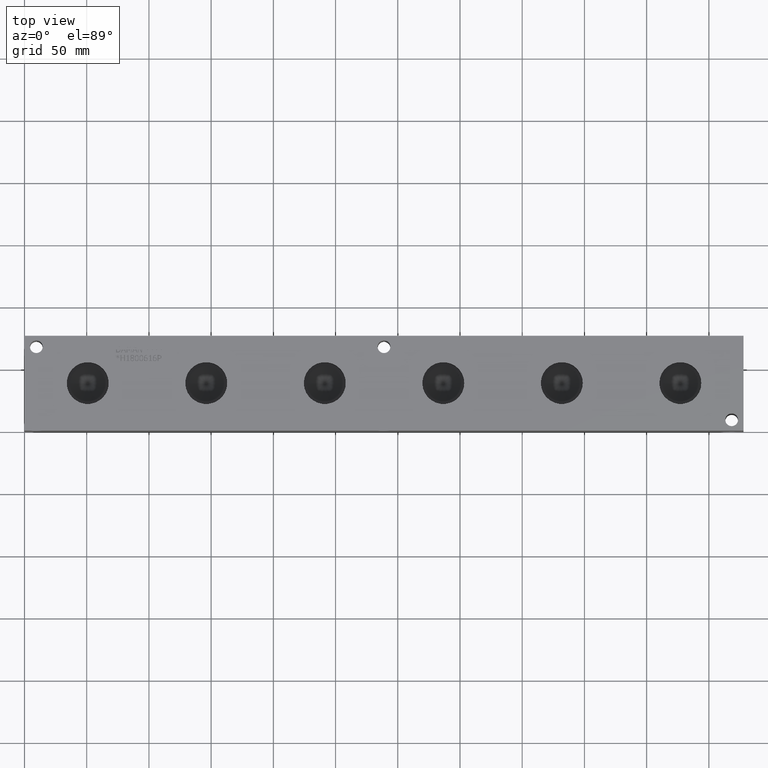
[diagram: clean part render]
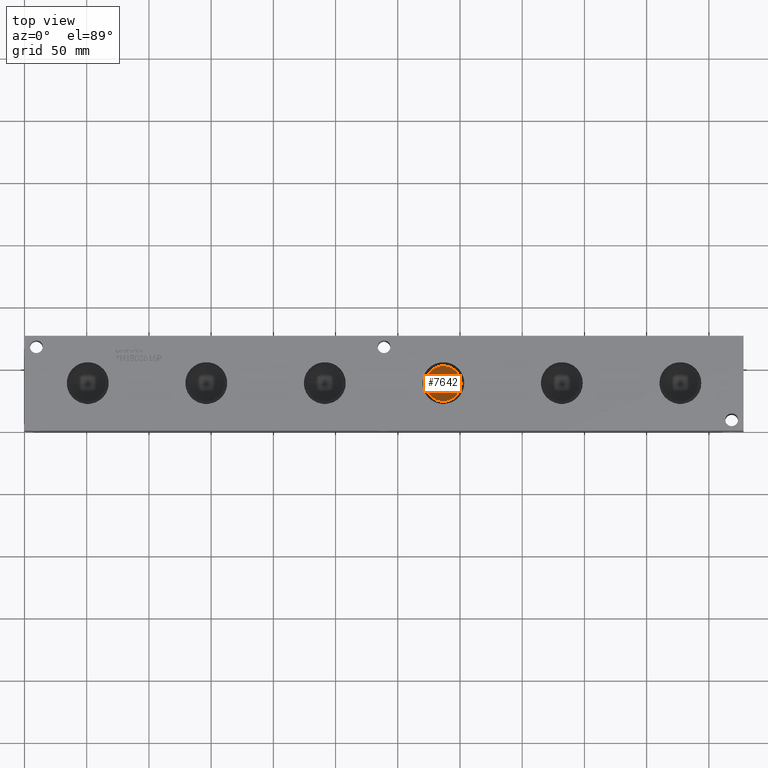
[diagram: same view with one face highlighted and labeled with its STEP entity id]
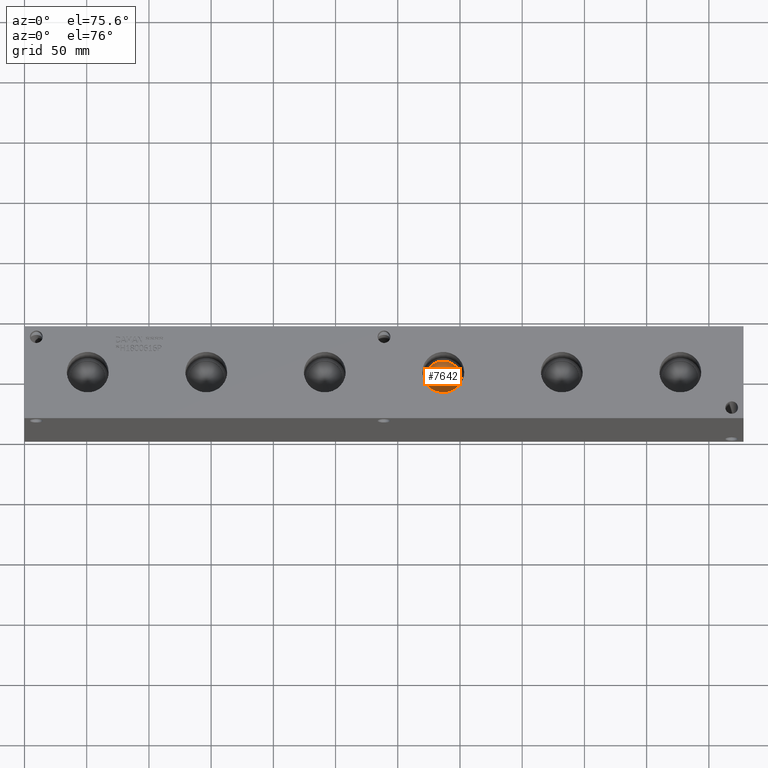
[diagram: same view with one face highlighted and labeled with its STEP entity id]
A machine part, top view. The second image highlights one B-rep face of the part: STEP entity #7642.
A second angle (auxiliary view) of the same face is appended — the face is thin or edge-on in the first view.
In plain terms, the highlighted conical surface has half-angle 60 deg.
Its self-contained STEP definition (entity closure, byte-faithful):
#24=CONICAL_SURFACE('',#8050,7.14375,1.0471975511966);
#172=CIRCLE('',#8051,14.2875);
#173=CIRCLE('',#8052,14.2875);
#868=FACE_OUTER_BOUND('',#1305,.T.);
#1305=EDGE_LOOP('',(#6747,#6748,#6749,#6750));
#2054=LINE('',#13012,#2780);
#2780=VECTOR('',#9552,7.14375);
#3682=VERTEX_POINT('',#13008);
#3683=VERTEX_POINT('',#13009);
#3684=VERTEX_POINT('',#13011);
#4722=EDGE_CURVE('',#3682,#3683,#172,.T.);
#4723=EDGE_CURVE('',#3683,#3684,#2054,.T.);
#4724=EDGE_CURVE('',#3683,#3682,#173,.T.);
#6747=ORIENTED_EDGE('',*,*,#4722,.T.);
#6748=ORIENTED_EDGE('',*,*,#4723,.T.);
#6749=ORIENTED_EDGE('',*,*,#4723,.F.);
#6750=ORIENTED_EDGE('',*,*,#4724,.T.);
#7642=ADVANCED_FACE('',(#868),#24,.F.);
#8050=AXIS2_PLACEMENT_3D('',#13007,#9548,#9549);
#8051=AXIS2_PLACEMENT_3D('',#13010,#9550,#9551);
#8052=AXIS2_PLACEMENT_3D('',#13013,#9553,#9554);
#9548=DIRECTION('center_axis',(0.,0.,1.));
#9549=DIRECTION('ref_axis',(1.,0.,0.));
#9550=DIRECTION('center_axis',(0.,0.,1.));
#9551=DIRECTION('ref_axis',(1.,0.,0.));
#9552=DIRECTION('',(0.866025403784438,1.06057523872491E-16,-0.5));
#9553=DIRECTION('center_axis',(0.,0.,1.));
#9554=DIRECTION('ref_axis',(1.,0.,0.));
#13007=CARTESIAN_POINT('Origin',(336.55,38.1,52.2514640144766));
#13008=CARTESIAN_POINT('',(350.8375,38.1,56.37591));
#13009=CARTESIAN_POINT('',(322.2625,38.1,56.37591));
#13010=CARTESIAN_POINT('Origin',(336.55,38.1,56.37591));
#13011=CARTESIAN_POINT('',(336.55,38.1,48.1270180289532));
#13012=CARTESIAN_POINT('',(329.40625,38.1,52.2514640144766));
#13013=CARTESIAN_POINT('Origin',(336.55,38.1,56.37591));